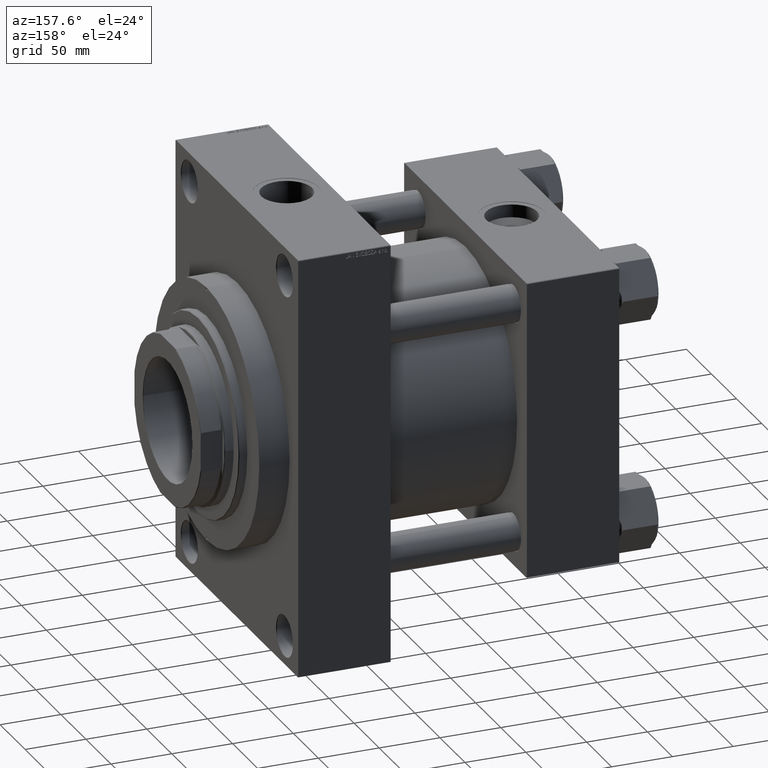
[diagram: clean part render]
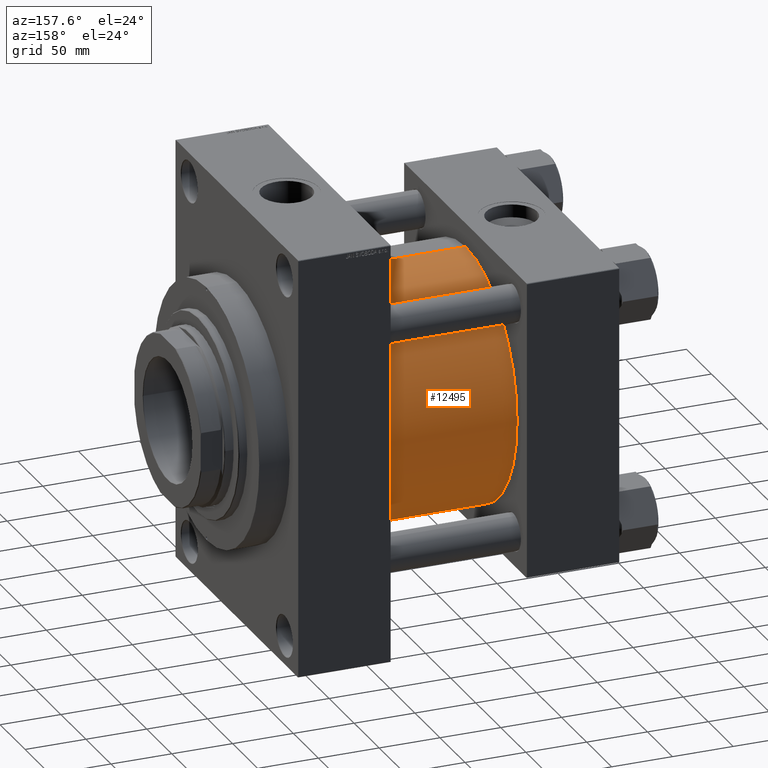
[diagram: same view with one face highlighted and labeled with its STEP entity id]
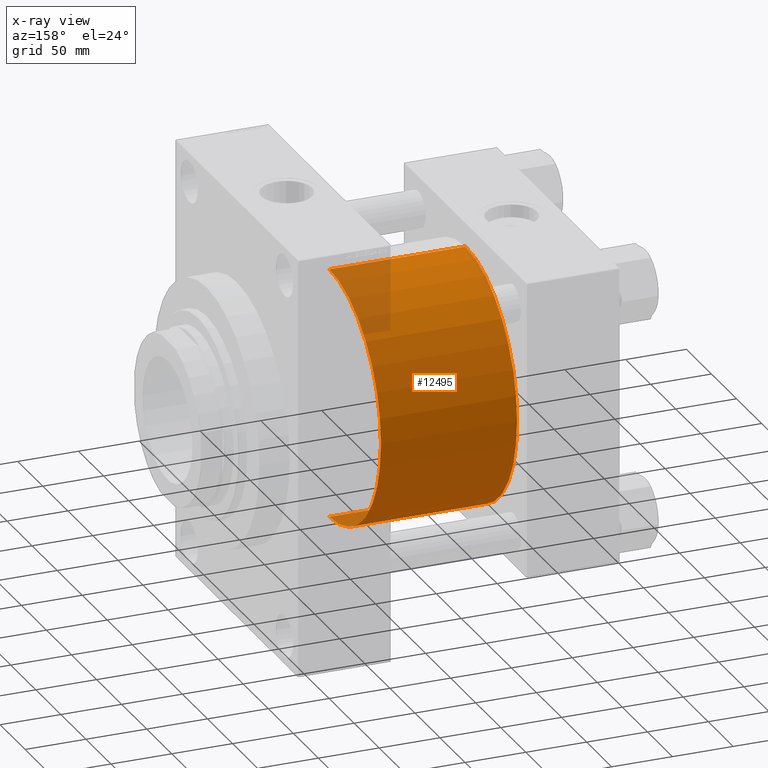
[diagram: x-ray of the same camera — body ghosted, the highlighted face saturated]
A machine part, auxiliary view. The second image highlights one B-rep face of the part: STEP entity #12495.
The next image is the same camera in x-ray: the body ghosted, the highlighted face saturated — about 10% of this face is hidden behind the body in this view.
In plain terms, the highlighted cylindrical surface (partial cylindrical patch) has radius 103 mm, axis along (-1, -0, -0).
Its self-contained STEP definition (entity closure, byte-faithful):
#536 = EDGE_CURVE ( 'NONE', #25655, #44201, #43162, .T. ) ;
#2070 = CARTESIAN_POINT ( 'NONE',  ( 188.0000000000000000, 1.001177681725252697E-14, -103.0000000000000000 ) ) ;
#2281 = DIRECTION ( 'NONE',  ( 0.000000000000000000, 0.000000000000000000, -1.000000000000000000 ) ) ;
#3086 = VECTOR ( 'NONE', #9448, 1000.000000000000000 ) ;
#3258 = CARTESIAN_POINT ( 'NONE',  ( 188.0000000000000000, 1.001177681725252697E-14, -103.0000000000000000 ) ) ;
#3579 = AXIS2_PLACEMENT_3D ( 'NONE', #12841, #5830, #35336 ) ;
#3941 = ORIENTED_EDGE ( 'NONE', *, *, #536, .T. ) ;
#5389 = ORIENTED_EDGE ( 'NONE', *, *, #42276, .F. ) ;
#5830 = DIRECTION ( 'NONE',  ( -1.000000000000000000, -0.000000000000000000, -0.000000000000000000 ) ) ;
#5906 = CARTESIAN_POINT ( 'NONE',  ( 188.0000000000000000, -2.602085213965210642E-15, 0.000000000000000000 ) ) ;
#6556 = AXIS2_PLACEMENT_3D ( 'NONE', #5906, #9777, #2281 ) ;
#9448 = DIRECTION ( 'NONE',  ( -1.000000000000000000, -0.000000000000000000, -0.000000000000000000 ) ) ;
#9777 = DIRECTION ( 'NONE',  ( 1.000000000000000000, 0.000000000000000000, 0.000000000000000000 ) ) ;
#10428 = CIRCLE ( 'NONE', #6556, 103.0000000000000000 ) ;
#12495 = ADVANCED_FACE ( 'NONE', ( #13091 ), #42323, .T. ) ;
#12841 = CARTESIAN_POINT ( 'NONE',  ( 188.0000000000000000, -2.602085213965210642E-15, 0.000000000000000000 ) ) ;
#13091 = FACE_OUTER_BOUND ( 'NONE', #40559, .T. ) ;
#17652 = CARTESIAN_POINT ( 'NONE',  ( 188.0000000000000000, -2.602085213965210642E-15, 103.0000000000000000 ) ) ;
#19653 = DIRECTION ( 'NONE',  ( 0.000000000000000000, 0.000000000000000000, 1.000000000000000000 ) ) ;
#19894 = DIRECTION ( 'NONE',  ( 1.000000000000000000, -0.000000000000000000, -0.000000000000000000 ) ) ;
#21178 = DIRECTION ( 'NONE',  ( -1.000000000000000000, -0.000000000000000000, -0.000000000000000000 ) ) ;
#24916 = LINE ( 'NONE', #17652, #3086 ) ;
#25655 = VERTEX_POINT ( 'NONE', #2070 ) ;
#27589 = EDGE_CURVE ( 'NONE', #41424, #37292, #24916, .T. ) ;
#28397 = CARTESIAN_POINT ( 'NONE',  ( 188.0000000000000000, -2.602085213965210642E-15, 103.0000000000000000 ) ) ;
#29894 = ORIENTED_EDGE ( 'NONE', *, *, #38348, .T. ) ;
#30530 = CARTESIAN_POINT ( 'NONE',  ( 76.00000000000000000, -2.602085213965210642E-15, 0.000000000000000000 ) ) ;
#32024 = AXIS2_PLACEMENT_3D ( 'NONE', #30530, #19894, #19653 ) ;
#35336 = DIRECTION ( 'NONE',  ( 0.000000000000000000, 0.000000000000000000, 1.000000000000000000 ) ) ;
#37292 = VERTEX_POINT ( 'NONE', #40973 ) ;
#38348 = EDGE_CURVE ( 'NONE', #44201, #37292, #42798, .T. ) ;
#40559 = EDGE_LOOP ( 'NONE', ( #5389, #3941, #29894, #44751 ) ) ;
#40973 = CARTESIAN_POINT ( 'NONE',  ( 76.00000000000000000, -2.602085213965210642E-15, 103.0000000000000000 ) ) ;
#41424 = VERTEX_POINT ( 'NONE', #28397 ) ;
#42276 = EDGE_CURVE ( 'NONE', #25655, #41424, #10428, .T. ) ;
#42323 = CYLINDRICAL_SURFACE ( 'NONE', #3579, 103.0000000000000000 ) ;
#42726 = VECTOR ( 'NONE', #21178, 1000.000000000000000 ) ;
#42798 = CIRCLE ( 'NONE', #32024, 103.0000000000000000 ) ;
#43162 = LINE ( 'NONE', #3258, #42726 ) ;
#44201 = VERTEX_POINT ( 'NONE', #47442 ) ;
#44751 = ORIENTED_EDGE ( 'NONE', *, *, #27589, .F. ) ;
#47442 = CARTESIAN_POINT ( 'NONE',  ( 76.00000000000000000, 1.001177681725252697E-14, -103.0000000000000000 ) ) ;